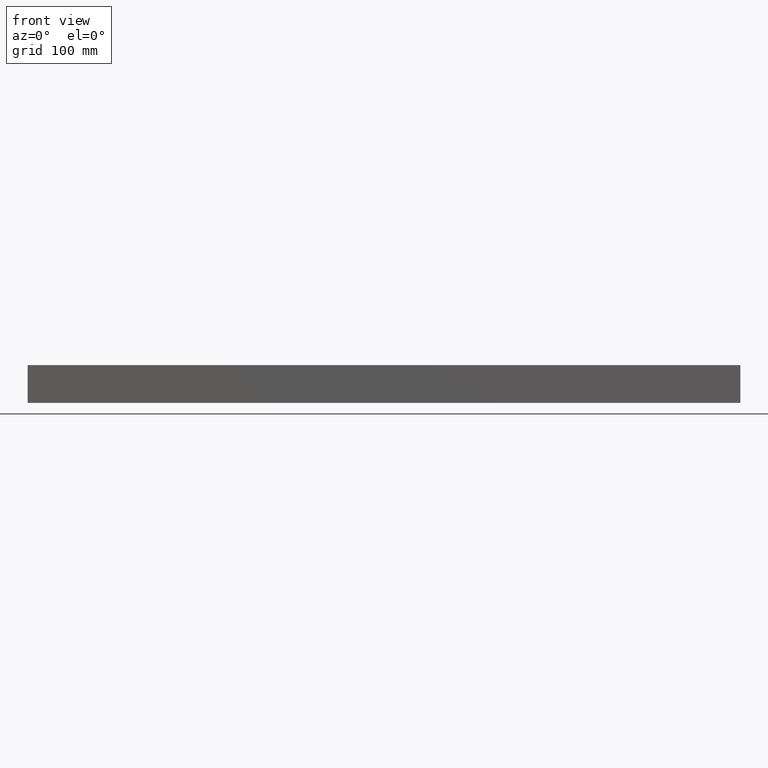
[diagram: clean part render]
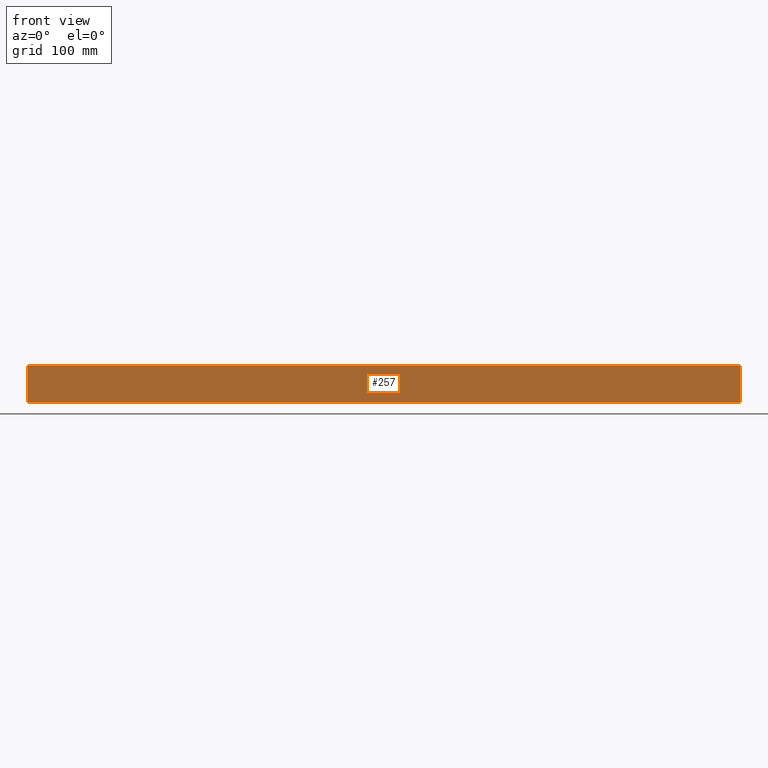
[diagram: same view with one face highlighted and labeled with its STEP entity id]
A machine part, front view. The second image highlights one B-rep face of the part: STEP entity #257.
In plain terms, the highlighted planar face has unit normal (-0, 1, -0).
Its self-contained STEP definition (entity closure, byte-faithful):
#9 = ORIENTED_EDGE ( 'NONE', *, *, #372, .T. ) ;
#24 = CARTESIAN_POINT ( 'NONE',  ( -424.9999999999999432, -95.00000000000019895, -22.49999999999965539 ) ) ;
#27 = LINE ( 'NONE', #299, #275 ) ;
#42 = VERTEX_POINT ( 'NONE', #75 ) ;
#47 = DIRECTION ( 'NONE',  ( 0.000000000000000000, 4.009138700035287069E-15, 1.000000000000000000 ) ) ;
#52 = CARTESIAN_POINT ( 'NONE',  ( -424.9999999999999432, -95.00000000000019895, -22.49999999999965539 ) ) ;
#56 = CARTESIAN_POINT ( 'NONE',  ( -424.9999999999999432, -95.00000000000001421, 22.50000000000035527 ) ) ;
#61 = ORIENTED_EDGE ( 'NONE', *, *, #180, .F. ) ;
#75 = CARTESIAN_POINT ( 'NONE',  ( 425.0000000000000568, -94.99999999999974420, 22.50000000000035527 ) ) ;
#111 = PLANE ( 'NONE',  #151 ) ;
#120 = VERTEX_POINT ( 'NONE', #321 ) ;
#126 = CARTESIAN_POINT ( 'NONE',  ( -424.9999999999999432, -95.00000000000001421, 22.50000000000035527 ) ) ;
#135 = EDGE_CURVE ( 'NONE', #120, #251, #27, .T. ) ;
#138 = FACE_OUTER_BOUND ( 'NONE', #191, .T. ) ;
#140 = DIRECTION ( 'NONE',  ( 0.000000000000000000, 4.009138700035287069E-15, 1.000000000000000000 ) ) ;
#143 = DIRECTION ( 'NONE',  ( 1.000000000000000000, 3.061616997868382648E-16, -0.000000000000000000 ) ) ;
#145 = VECTOR ( 'NONE', #161, 1000.000000000000000 ) ;
#151 = AXIS2_PLACEMENT_3D ( 'NONE', #52, #377, #228 ) ;
#161 = DIRECTION ( 'NONE',  ( 1.000000000000000000, 3.061616997868382648E-16, -0.000000000000000000 ) ) ;
#164 = LINE ( 'NONE', #199, #281 ) ;
#180 = EDGE_CURVE ( 'NONE', #251, #42, #294, .T. ) ;
#191 = EDGE_LOOP ( 'NONE', ( #9, #61, #339, #271 ) ) ;
#199 = CARTESIAN_POINT ( 'NONE',  ( 425.0000000000000568, -94.99999999999992895, -22.49999999999965539 ) ) ;
#228 = DIRECTION ( 'NONE',  ( 0.000000000000000000, 4.009138700035287069E-15, 1.000000000000000000 ) ) ;
#251 = VERTEX_POINT ( 'NONE', #126 ) ;
#255 = CARTESIAN_POINT ( 'NONE',  ( 425.0000000000000568, -94.99999999999974420, -22.50000000000037659 ) ) ;
#257 = ADVANCED_FACE ( 'NONE', ( #138 ), #111, .F. ) ;
#271 = ORIENTED_EDGE ( 'NONE', *, *, #325, .T. ) ;
#275 = VECTOR ( 'NONE', #140, 1000.000000000000000 ) ;
#281 = VECTOR ( 'NONE', #47, 1000.000000000000000 ) ;
#286 = LINE ( 'NONE', #24, #145 ) ;
#294 = LINE ( 'NONE', #56, #353 ) ;
#299 = CARTESIAN_POINT ( 'NONE',  ( -424.9999999999999432, -95.00000000000019895, -22.49999999999965539 ) ) ;
#321 = CARTESIAN_POINT ( 'NONE',  ( -424.9999999999999432, -95.00000000000019895, -22.49999999999965539 ) ) ;
#325 = EDGE_CURVE ( 'NONE', #120, #334, #286, .T. ) ;
#334 = VERTEX_POINT ( 'NONE', #255 ) ;
#339 = ORIENTED_EDGE ( 'NONE', *, *, #135, .F. ) ;
#353 = VECTOR ( 'NONE', #143, 1000.000000000000000 ) ;
#372 = EDGE_CURVE ( 'NONE', #334, #42, #164, .T. ) ;
#377 = DIRECTION ( 'NONE',  ( -3.061616997868382648E-16, 1.000000000000000000, -4.009138700035287069E-15 ) ) ;